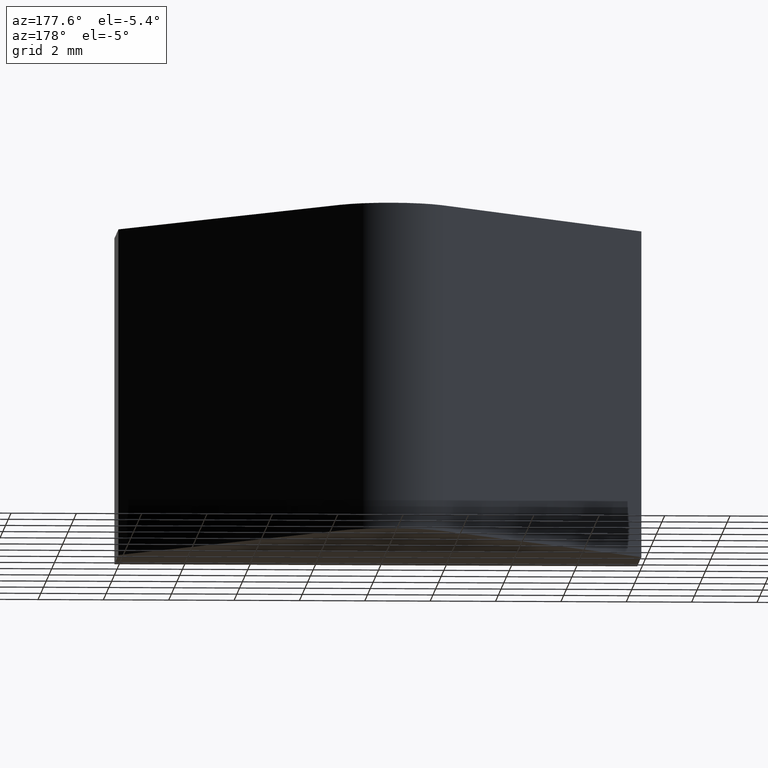
[diagram: clean part render]
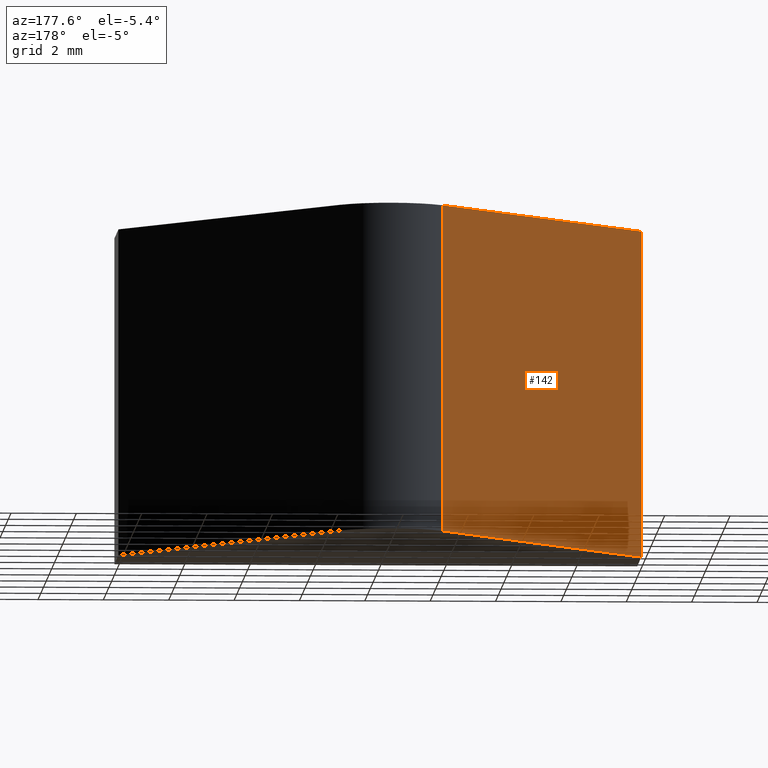
[diagram: same view with one face highlighted and labeled with its STEP entity id]
A machine part, auxiliary view. The second image highlights one B-rep face of the part: STEP entity #142.
In plain terms, the highlighted planar face has unit normal (-0.7883, 0.6152, 0).
Its self-contained STEP definition (entity closure, byte-faithful):
#19=FACE_OUTER_BOUND('',#27,.T.);
#27=EDGE_LOOP('',(#107,#108,#109,#110));
#38=LINE('',#229,#54);
#41=LINE('',#237,#57);
#43=LINE('',#241,#59);
#44=LINE('',#242,#60);
#54=VECTOR('',#188,10.);
#57=VECTOR('',#195,10.);
#59=VECTOR('',#199,10.);
#60=VECTOR('',#200,10.);
#70=VERTEX_POINT('',#226);
#71=VERTEX_POINT('',#228);
#74=VERTEX_POINT('',#235);
#75=VERTEX_POINT('',#240);
#82=EDGE_CURVE('',#71,#70,#38,.T.);
#86=EDGE_CURVE('',#74,#70,#41,.T.);
#88=EDGE_CURVE('',#74,#75,#43,.T.);
#89=EDGE_CURVE('',#75,#71,#44,.T.);
#107=ORIENTED_EDGE('',*,*,#88,.T.);
#108=ORIENTED_EDGE('',*,*,#89,.T.);
#109=ORIENTED_EDGE('',*,*,#82,.T.);
#110=ORIENTED_EDGE('',*,*,#86,.F.);
#135=PLANE('',#174);
#142=ADVANCED_FACE('',(#19),#135,.T.);
#174=AXIS2_PLACEMENT_3D('',#239,#197,#198);
#188=DIRECTION('',(-0.615242938683933,-0.788337571348441,0.));
#195=DIRECTION('',(0.,0.,-1.));
#197=DIRECTION('center_axis',(-0.788337571348441,0.615242938683933,0.));
#198=DIRECTION('ref_axis',(0.,0.,1.));
#199=DIRECTION('',(0.615242938683933,0.788337571348441,0.));
#200=DIRECTION('',(0.,0.,-1.));
#226=CARTESIAN_POINT('',(-8.,3.,-5.));
#228=CARTESIAN_POINT('',(-1.57667514269688,11.2304858773679,-5.));
#229=CARTESIAN_POINT('',(-8.,3.,-5.));
#235=CARTESIAN_POINT('',(-8.,3.,5.));
#237=CARTESIAN_POINT('',(-8.,3.,0.));
#239=CARTESIAN_POINT('Origin',(-8.,3.,0.));
#240=CARTESIAN_POINT('',(-1.57667514269688,11.2304858773679,5.));
#241=CARTESIAN_POINT('',(-8.,3.,5.));
#242=CARTESIAN_POINT('',(-1.57667514269688,11.2304858773679,0.));